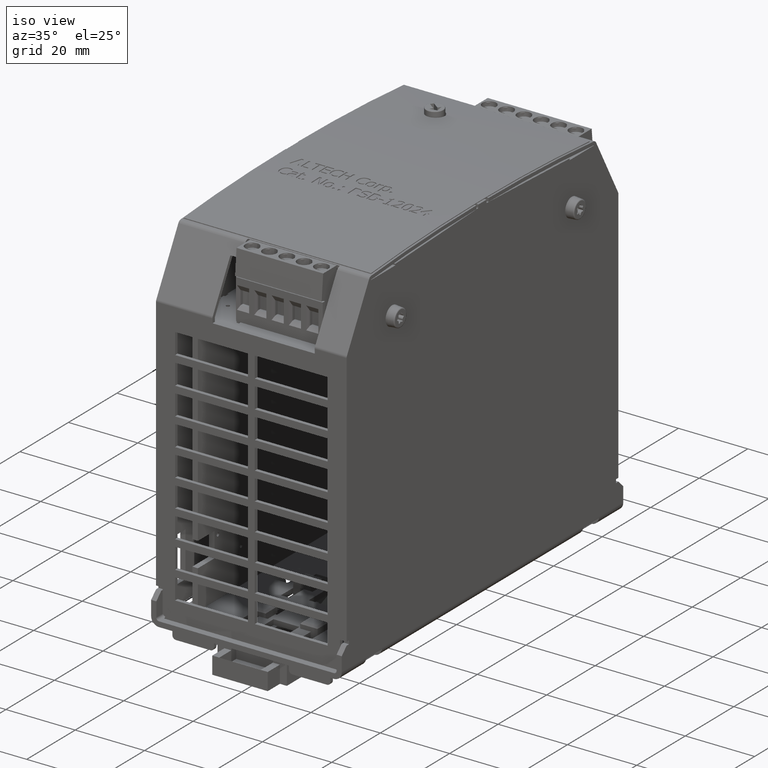
[diagram: clean part render]
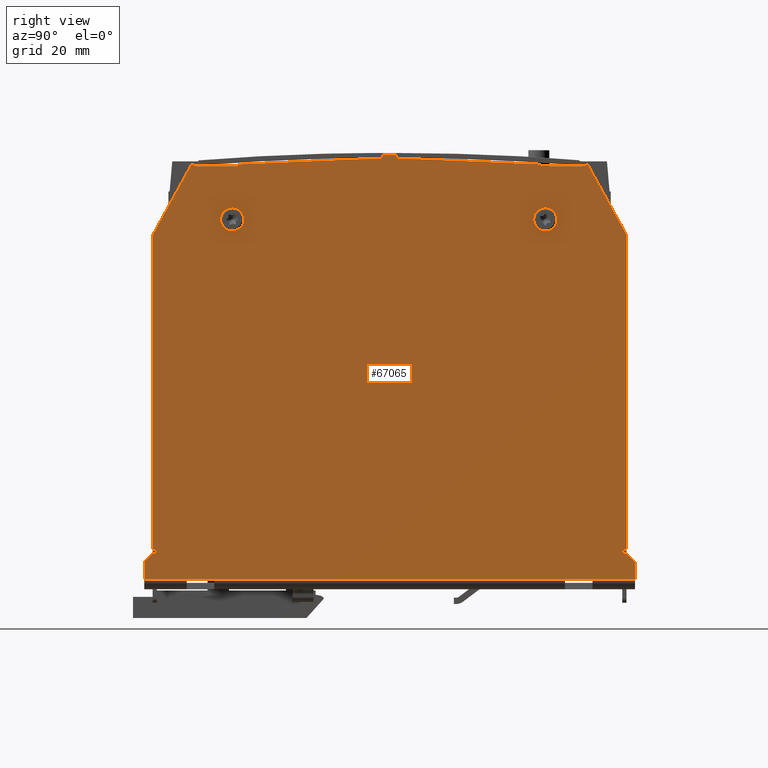
[diagram: tour spotlight — one face highlighted and labeled with its STEP entity id]
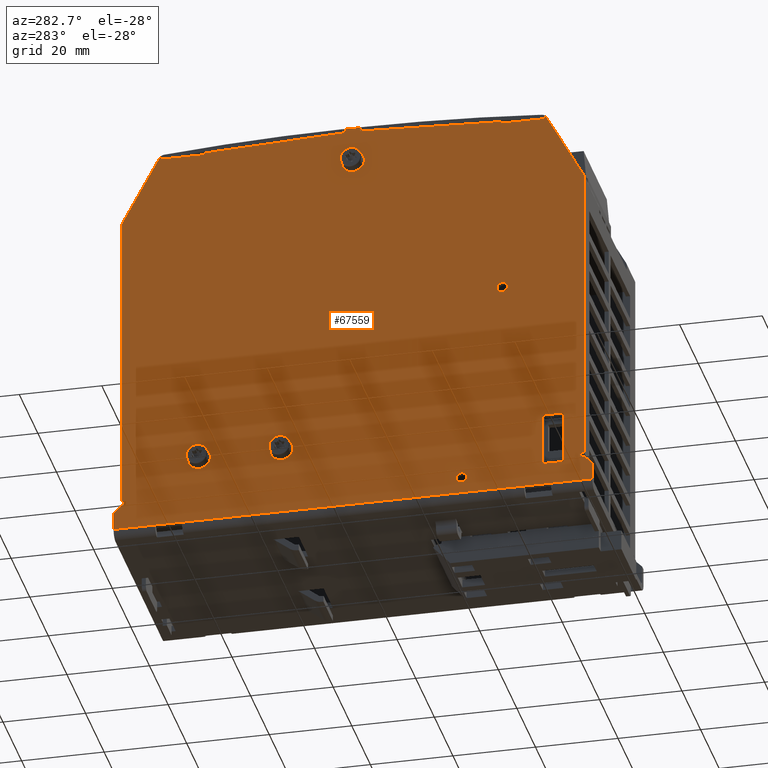
[diagram: tour spotlight — one face highlighted and labeled with its STEP entity id]
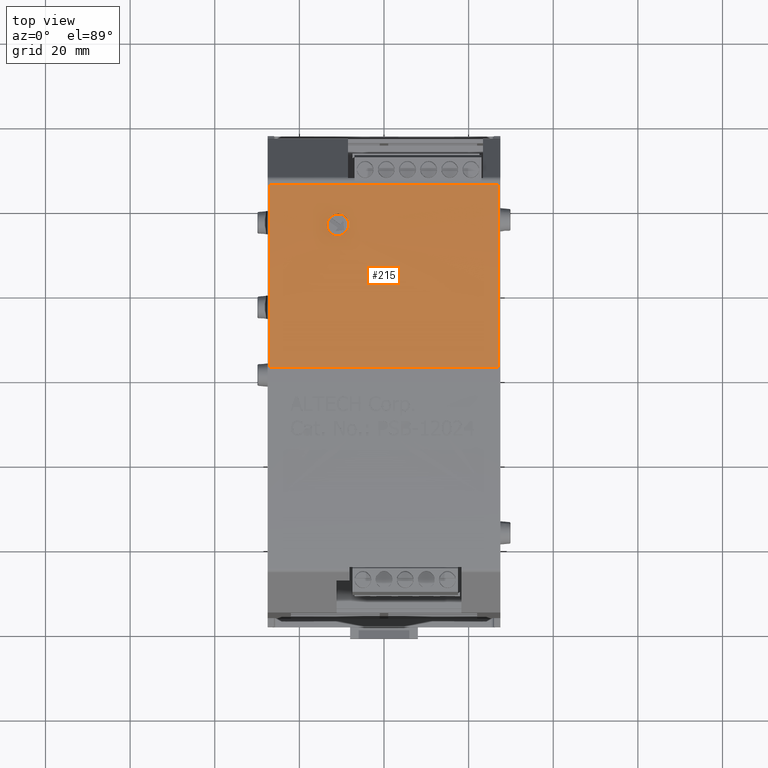
[diagram: tour spotlight — one face highlighted and labeled with its STEP entity id]
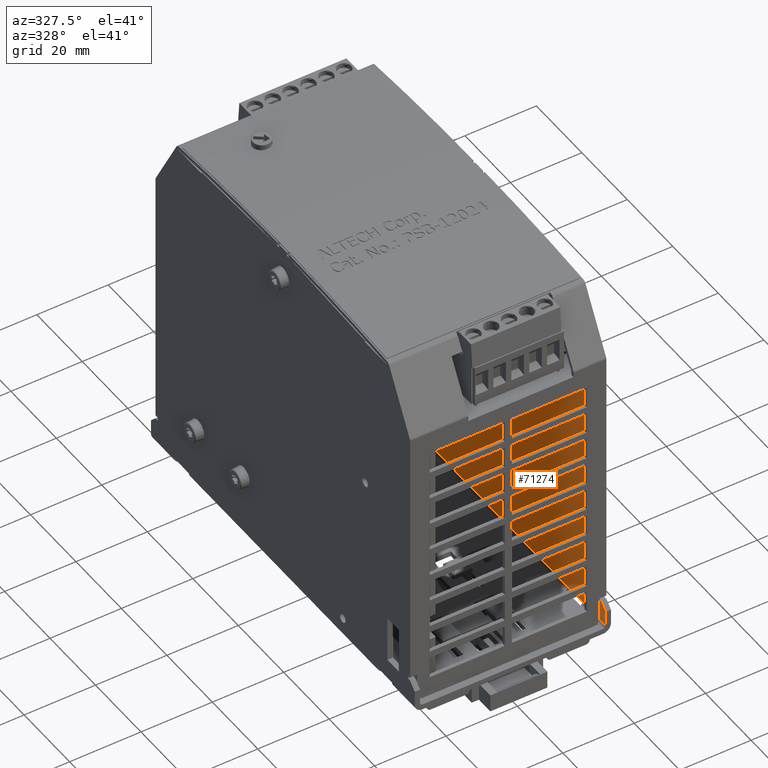
[diagram: tour spotlight — one face highlighted and labeled with its STEP entity id]
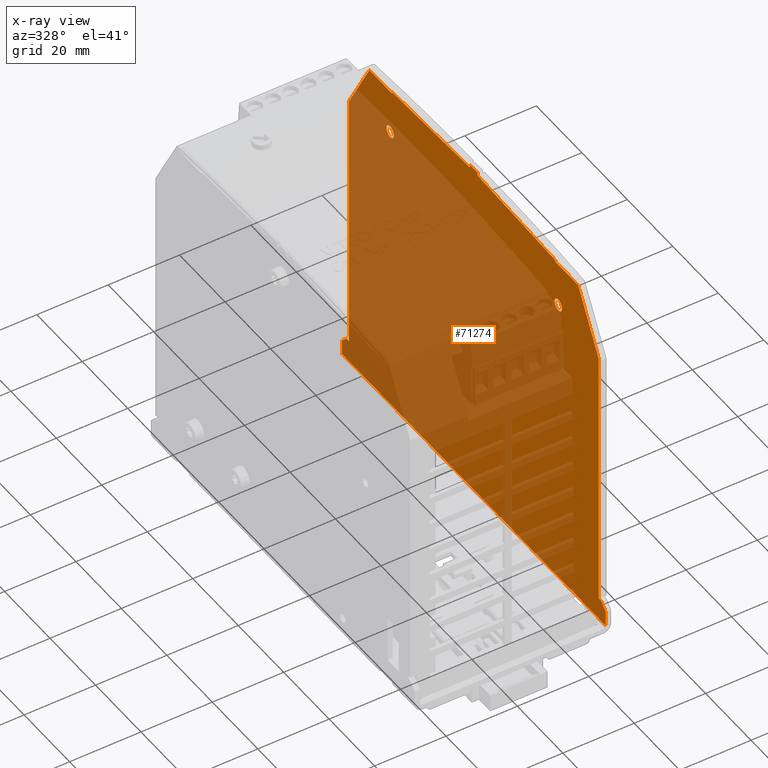
[diagram: x-ray of the same camera — body ghosted, this tour face saturated]
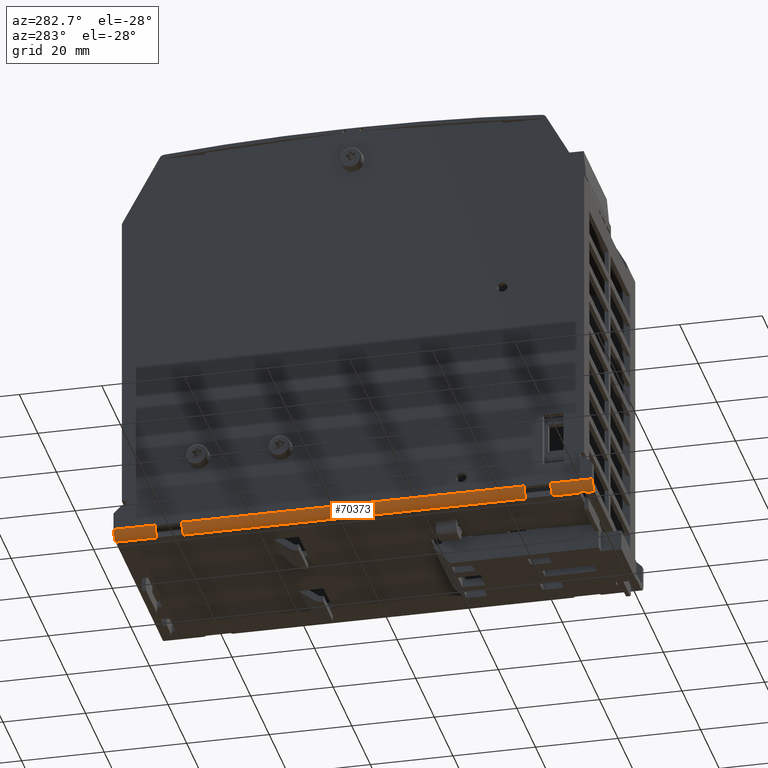
[diagram: tour spotlight — one face highlighted and labeled with its STEP entity id]
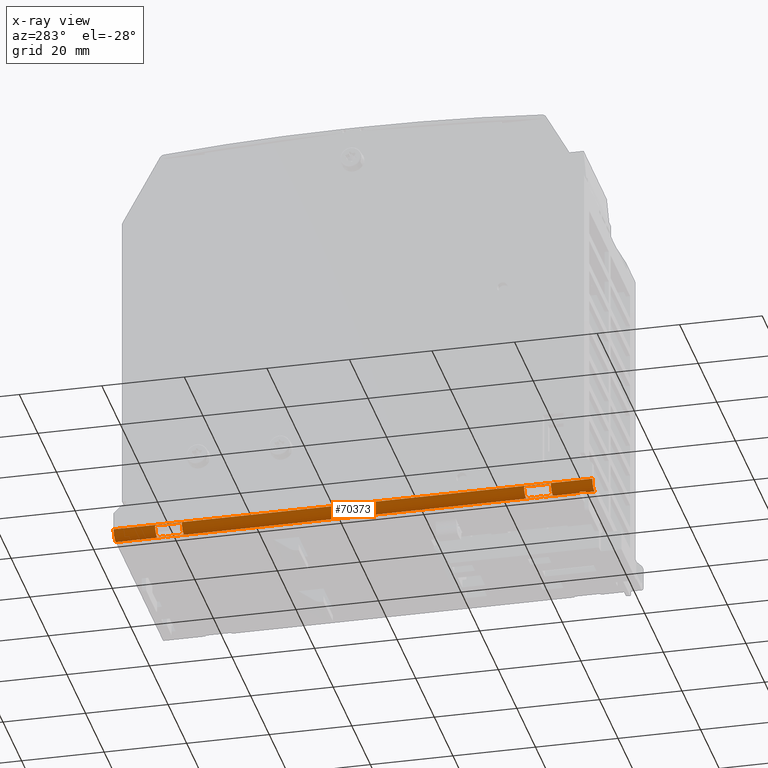
[diagram: x-ray of the same camera — body ghosted, this tour face saturated]
A machine part: a face-by-face anatomy tour. The part has 2157 B-rep faces; the first image is the clean iso view, then the 5 largest visible faces are spotlighted one at a time (largest first), each with its STEP entity span.

Face 1 — right view, entity #67065. In plain terms, the highlighted planar face has unit normal (-1, 0, 0).
Definition (entity closure, byte-faithful):
#16807=CARTESIAN_POINT('',(1.082677165354343,-1.375260035914087,3.502150905018449));
#16808=VERTEX_POINT('',#16807);
#16809=CARTESIAN_POINT('',(1.082677165354326,-1.464566929133859,3.440944881889765));
#16810=DIRECTION('',(-1.0,0.0,0.0));
#16811=DIRECTION('',(0.0,0.824870941011712,0.565321086352218));
#16812=AXIS2_PLACEMENT_3D('',#16809,#16810,#16811);
#16813=CIRCLE('',#16812,0.108267716535435);
#16814=EDGE_CURVE('',#16808,#16808,#16813,.T.);
#19207=CARTESIAN_POINT('',(1.082677165354342,1.557086614173229,3.440944881889766));
#19208=VERTEX_POINT('',#19207);
#19209=CARTESIAN_POINT('',(1.082677165354326,1.448818897637795,3.440944881889766));
#19210=DIRECTION('',(-1.0,0.0,0.0));
#19211=DIRECTION('',(0.0,1.0,0.0));
#19212=AXIS2_PLACEMENT_3D('',#19209,#19210,#19211);
#19213=CIRCLE('',#19212,0.108267716535435);
#19214=EDGE_CURVE('',#19208,#19208,#19213,.T.);
#57264=CARTESIAN_POINT('',(1.082677165354315,1.841561223489167,3.956021143397083));
#57265=VERTEX_POINT('',#57264);
#57485=CARTESIAN_POINT('',(1.082677165354314,2.204724409449062,3.286387887926742));
#57486=VERTEX_POINT('',#57485);
#57493=CARTESIAN_POINT('',(1.082677165354315,2.204724409449633,0.374015748032657));
#57494=VERTEX_POINT('',#57493);
#57495=CARTESIAN_POINT('',(1.082677165354314,2.204724409449062,3.286387887926742));
#57496=DIRECTION('',(2.287255E-016,1.963990E-013,-1.0));
#57497=VECTOR('',#57496,2.912372139894085);
#57498=LINE('',#57495,#57497);
#57499=EDGE_CURVE('',#57486,#57494,#57498,.T.);
#59376=CARTESIAN_POINT('',(1.082677165354312,-2.204724409448824,0.374015748031457));
#59377=VERTEX_POINT('',#59376);
#59384=CARTESIAN_POINT('',(1.082677165354312,-2.204724409448827,3.286387887925589));
#59385=VERTEX_POINT('',#59384);
#59386=CARTESIAN_POINT('',(1.082677165354312,-2.204724409448824,0.374015748031457));
#59387=DIRECTION('',(0.0,0.0,1.0));
#59388=VECTOR('',#59387,2.912372139894131);
#59389=LINE('',#59386,#59388);
#59390=EDGE_CURVE('',#59377,#59385,#59389,.T.);
#61126=CARTESIAN_POINT('',(1.082677165354315,2.199339393082315,3.307302484245017));
#61127=VERTEX_POINT('',#61126);
#61128=CARTESIAN_POINT('',(1.082677165354315,1.841561223489167,3.956021143397083));
#61129=DIRECTION('',(0.0,0.482937042258638,-0.875655076622341));
#61130=VECTOR('',#61129,0.74083811819417);
#61131=LINE('',#61128,#61130);
#61132=EDGE_CURVE('',#57265,#61127,#61131,.T.);
#61214=CARTESIAN_POINT('',(1.082677165354314,2.161417322834892,3.28638788792673));
#61215=DIRECTION('',(-1.0,0.0,0.0));
#61216=DIRECTION('',(0.0,0.875655076622366,0.482937042258594));
#61217=AXIS2_PLACEMENT_3D('',#61214,#61215,#61216);
#61218=CIRCLE('',#61217,0.04330708661417);
#61219=EDGE_CURVE('',#61127,#57486,#61218,.T.);
#62233=CARTESIAN_POINT('',(1.082677165354324,-1.807086614173227,3.93700787401575));
#62234=VERTEX_POINT('',#62233);
#64960=CARTESIAN_POINT('',(1.082677165354314,-2.16535433070867,0.374015748031458));
#64961=VERTEX_POINT('',#64960);
#64962=CARTESIAN_POINT('',(1.082677165354312,-2.204724409448824,0.374015748031457));
#64963=DIRECTION('',(0.0,1.0,0.0));
#64964=VECTOR('',#64963,0.039370078740154);
#64965=LINE('',#64962,#64964);
#64966=EDGE_CURVE('',#59377,#64961,#64965,.T.);
#65359=CARTESIAN_POINT('',(1.082677165354315,2.165354330709476,0.374015748032648));
#65360=VERTEX_POINT('',#65359);
#65361=CARTESIAN_POINT('',(1.082677165354315,2.165354330709476,0.374015748032648));
#65362=DIRECTION('',(0.0,1.0,2.396972E-013));
#65363=VECTOR('',#65362,0.039370078740158);
#65364=LINE('',#65361,#65363);
#65365=EDGE_CURVE('',#65360,#57494,#65364,.T.);
#65732=CARTESIAN_POINT('',(1.082677165354324,1.807086614173229,3.93700787401575));
#65733=VERTEX_POINT('',#65732);
#65734=CARTESIAN_POINT('',(1.082677165354315,1.841561223489167,3.956021143397083));
#65735=DIRECTION('',(0.0,-0.875655076622339,-0.482937042258643));
#65736=VECTOR('',#65735,0.039370078740149);
#65737=LINE('',#65734,#65736);
#65738=EDGE_CURVE('',#57265,#65733,#65737,.T.);
#65778=CARTESIAN_POINT('',(1.082677165354314,-1.841561223489085,3.95602114339602));
#65779=VERTEX_POINT('',#65778);
#65838=CARTESIAN_POINT('',(1.082677165354314,-1.841561223489085,3.95602114339602));
#65839=DIRECTION('',(1.691980E-014,0.875655076622439,-0.482937042258461));
#65840=VECTOR('',#65839,0.039370078740152);
#65841=LINE('',#65838,#65840);
#65842=EDGE_CURVE('',#65779,#62234,#65841,.T.);
#65855=CARTESIAN_POINT('',(1.082677165354314,-2.199339393082083,3.307302484243867));
#65856=VERTEX_POINT('',#65855);
#65857=CARTESIAN_POINT('',(1.082677165354312,-2.161417322834652,3.286387887925585));
#65858=DIRECTION('',(-1.0,0.0,0.0));
#65859=DIRECTION('',(0.0,-1.0,0.0));
#65860=AXIS2_PLACEMENT_3D('',#65857,#65858,#65859);
#65861=CIRCLE('',#65860,0.043307086614175);
#65862=EDGE_CURVE('',#59385,#65856,#65861,.T.);
#65880=CARTESIAN_POINT('',(1.082677165354314,-2.199339393082083,3.307302484243867));
#65881=DIRECTION('',(0.0,0.482937042258434,0.875655076622454));
#65882=VECTOR('',#65881,0.740838118194173);
#65883=LINE('',#65880,#65882);
#65884=EDGE_CURVE('',#65856,#65779,#65883,.T.);
#65976=CARTESIAN_POINT('',(1.08267716535433,-2.165354330708662,0.334645669291341));
#65977=VERTEX_POINT('',#65976);
#65984=CARTESIAN_POINT('',(1.082677165354325,-2.165354330708661,0.374015748031458));
#65985=DIRECTION('',(0.0,0.0,-1.0));
#65986=VECTOR('',#65985,0.039370078740117);
#65987=LINE('',#65984,#65986);
#65988=EDGE_CURVE('',#64961,#65977,#65987,.T.);
#66873=CARTESIAN_POINT('',(1.082677165354326,-4.823126E-017,-0.992709559873258));
#66874=DIRECTION('',(-1.0,0.0,0.0));
#66875=DIRECTION('',(0.0,0.0,1.0));
#66876=AXIS2_PLACEMENT_3D('',#66873,#66874,#66875);
#66877=PLANE('',#66876);
#66878=ORIENTED_EDGE('',*,*,#65988,.T.);
#66879=CARTESIAN_POINT('',(1.08267716535433,-2.20472440944882,0.334645669291341));
#66880=VERTEX_POINT('',#66879);
#66881=CARTESIAN_POINT('',(1.08267716535433,-2.165354330708662,0.334645669291341));
#66882=DIRECTION('',(0.0,-1.0,0.0));
#66883=VECTOR('',#66882,0.039370078740158);
#66884=LINE('',#66881,#66883);
#66885=EDGE_CURVE('',#65977,#66880,#66884,.T.);
#66886=ORIENTED_EDGE('',*,*,#66885,.T.);
#66887=CARTESIAN_POINT('',(1.08267716535433,-2.283464566929135,0.255905511811026));
#66888=VERTEX_POINT('',#66887);
#66889=CARTESIAN_POINT('',(1.08267716535433,-2.20472440944882,0.334645669291341));
#66890=DIRECTION('',(0.0,-0.707106781186551,-0.707106781186544));
#66891=VECTOR('',#66890,0.111355398612055);
#66892=LINE('',#66889,#66891);
#66893=EDGE_CURVE('',#66880,#66888,#66892,.T.);
#66894=ORIENTED_EDGE('',*,*,#66893,.T.);
#66895=CARTESIAN_POINT('',(1.08267716535433,-2.283464566929135,0.088582677165356));
#66896=VERTEX_POINT('',#66895);
#66897=CARTESIAN_POINT('',(1.08267716535433,-2.283464566929135,0.088582677165356));
#66898=DIRECTION('',(0.0,0.0,1.0));
#66899=VECTOR('',#66898,0.16732283464567);
#66900=LINE('',#66897,#66899);
#66901=EDGE_CURVE('',#66896,#66888,#66900,.T.);
#66902=ORIENTED_EDGE('',*,*,#66901,.F.);
#66903=CARTESIAN_POINT('',(1.08267716535433,2.283464566929135,0.088582677165356));
#66904=VERTEX_POINT('',#66903);
#66905=CARTESIAN_POINT('',(1.08267716535433,-2.283464566929135,0.088582677165356));
#66906=DIRECTION('',(0.0,1.0,0.0));
#66907=VECTOR('',#66906,4.56692913385827);
#66908=LINE('',#66905,#66907);
#66909=EDGE_CURVE('',#66896,#66904,#66908,.T.);
#66910=ORIENTED_EDGE('',*,*,#66909,.T.);
#66911=CARTESIAN_POINT('',(1.08267716535433,2.283464566929135,0.255905511811026));
#66912=VERTEX_POINT('',#66911);
#66913=CARTESIAN_POINT('',(1.08267716535433,2.283464566929135,0.255905511811026));
#66914=DIRECTION('',(0.0,0.0,-1.0));
#66915=VECTOR('',#66914,0.16732283464567);
#66916=LINE('',#66913,#66915);
#66917=EDGE_CURVE('',#66912,#66904,#66916,.T.);
#66918=ORIENTED_EDGE('',*,*,#66917,.F.);
#66919=CARTESIAN_POINT('',(1.08267716535433,2.20472440944882,0.334645669291341));
#66920=VERTEX_POINT('',#66919);
#66921=CARTESIAN_POINT('',(1.08267716535433,2.283464566929135,0.255905511811026));
#66922=DIRECTION('',(0.0,-0.70710678118655,0.707106781186544));
#66923=VECTOR('',#66922,0.111355398612055);
#66924=LINE('',#66921,#66923);
#66925=EDGE_CURVE('',#66912,#66920,#66924,.T.);
#66926=ORIENTED_EDGE('',*,*,#66925,.T.);
#66927=CARTESIAN_POINT('',(1.08267716535433,2.165354330708663,0.334645669291341));
#66928=VERTEX_POINT('',#66927);
#66929=CARTESIAN_POINT('',(1.08267716535433,2.20472440944882,0.334645669291341));
#66930=DIRECTION('',(0.0,-1.0,0.0));
#66931=VECTOR('',#66930,0.039370078740157);
#66932=LINE('',#66929,#66931);
#66933=EDGE_CURVE('',#66920,#66928,#66932,.T.);
#66934=ORIENTED_EDGE('',*,*,#66933,.T.);
#66935=CARTESIAN_POINT('',(1.08267716535433,2.165354330708663,0.334645669291341));
#66936=DIRECTION('',(0.0,0.0,1.0));
#66937=VECTOR('',#66936,0.039370078741307);
#66938=LINE('',#66935,#66937);
#66939=EDGE_CURVE('',#66928,#65360,#66938,.T.);
#66940=ORIENTED_EDGE('',*,*,#66939,.T.);
#66941=ORIENTED_EDGE('',*,*,#65365,.T.);
#66942=ORIENTED_EDGE('',*,*,#57499,.F.);
#66943=CARTESIAN_POINT('',(1.082677165354312,2.165354330708911,3.286387887926732));
#66944=VERTEX_POINT('',#66943);
#66945=CARTESIAN_POINT('',(1.082677165354314,2.204724409449062,3.286387887926742));
#66946=DIRECTION('',(-6.203926E-014,-1.0,-2.707168E-013));
#66947=VECTOR('',#66946,0.039370078740151);
#66948=LINE('',#66945,#66947);
#66949=EDGE_CURVE('',#57486,#66944,#66948,.T.);
#66950=ORIENTED_EDGE('',*,*,#66949,.T.);
#66951=ORIENTED_EDGE('',*,*,#66949,.F.);
#66952=ORIENTED_EDGE('',*,*,#61219,.F.);
#66953=CARTESIAN_POINT('',(1.082677165354314,2.164864783766477,3.28828921486476));
#66954=VERTEX_POINT('',#66953);
#66955=CARTESIAN_POINT('',(1.082677165354315,2.199339393082315,3.307302484245017));
#66956=DIRECTION('',(-1.127987E-014,-0.875655076622362,-0.482937042258601));
#66957=VECTOR('',#66956,0.039370078740154);
#66958=LINE('',#66955,#66957);
#66959=EDGE_CURVE('',#61127,#66954,#66958,.T.);
#66960=ORIENTED_EDGE('',*,*,#66959,.T.);
#66961=ORIENTED_EDGE('',*,*,#66959,.F.);
#66962=ORIENTED_EDGE('',*,*,#61132,.F.);
#66963=ORIENTED_EDGE('',*,*,#65738,.T.);
#66964=CARTESIAN_POINT('',(1.082677165354344,1.413385826771655,3.93700787401575));
#66965=VERTEX_POINT('',#66964);
#66966=CARTESIAN_POINT('',(1.082677165354324,1.807086614173229,3.93700787401575));
#66967=DIRECTION('',(0.0,-1.0,0.0));
#66968=VECTOR('',#66967,0.393700787401575);
#66969=LINE('',#66966,#66968);
#66970=EDGE_CURVE('',#65733,#66965,#66969,.T.);
#66971=ORIENTED_EDGE('',*,*,#66970,.T.);
#66972=CARTESIAN_POINT('',(1.082677165354345,1.413385826771655,3.953931663519439));
#66973=VERTEX_POINT('',#66972);
#66974=CARTESIAN_POINT('',(1.082677165354344,1.413385826771655,3.93700787401575));
#66975=DIRECTION('',(0.0,0.0,1.0));
#66976=VECTOR('',#66975,0.016923789503688);
#66977=LINE('',#66974,#66976);
#66978=EDGE_CURVE('',#66965,#66973,#66977,.T.);
#66979=ORIENTED_EDGE('',*,*,#66978,.T.);
#66980=CARTESIAN_POINT('',(1.082677165354324,0.066929133858268,4.01181102362205));
#66981=VERTEX_POINT('',#66980);
#66982=CARTESIAN_POINT('',(1.082677165354345,1.413385826771655,3.953931663519439));
#66983=DIRECTION('',(-1.532251E-014,-0.999077362081988,0.042946764433388));
#66984=VECTOR('',#66983,1.347700132157426);
#66985=LINE('',#66982,#66984);
#66986=EDGE_CURVE('',#66973,#66981,#66985,.T.);
#66987=ORIENTED_EDGE('',*,*,#66986,.T.);
#66988=CARTESIAN_POINT('',(1.082677165354324,0.066929133858269,4.047244094488192));
#66989=VERTEX_POINT('',#66988);
#66990=CARTESIAN_POINT('',(1.082677165354324,0.066929133858268,4.01181102362205));
#66991=DIRECTION('',(0.0,0.0,1.0));
#66992=VECTOR('',#66991,0.035433070866142);
#66993=LINE('',#66990,#66992);
#66994=EDGE_CURVE('',#66981,#66989,#66993,.T.);
#66995=ORIENTED_EDGE('',*,*,#66994,.T.);
#66996=CARTESIAN_POINT('',(1.082677165354324,-0.066929133858266,4.047244094488193));
#66997=VERTEX_POINT('',#66996);
#66998=CARTESIAN_POINT('',(1.082677165354324,-0.066929133858266,4.047244094488193));
#66999=DIRECTION('',(0.0,1.0,0.0));
#67000=VECTOR('',#66999,0.133858267716535);
#67001=LINE('',#66998,#67000);
#67002=EDGE_CURVE('',#66997,#66989,#67001,.T.);
#67003=ORIENTED_EDGE('',*,*,#67002,.F.);
#67004=CARTESIAN_POINT('',(1.082677165354324,-0.066929133858266,4.011811023622052));
#67005=VERTEX_POINT('',#67004);
#67006=CARTESIAN_POINT('',(1.082677165354324,-0.066929133858266,4.047244094488193));
#67007=DIRECTION('',(0.0,0.0,-1.0));
#67008=VECTOR('',#67007,0.035433070866142);
#67009=LINE('',#67006,#67008);
#67010=EDGE_CURVE('',#66997,#67005,#67009,.T.);
#67011=ORIENTED_EDGE('',*,*,#67010,.T.);
#67012=CARTESIAN_POINT('',(1.082677165354345,-1.413385826771654,3.95393166351944));
#67013=VERTEX_POINT('',#67012);
#67014=CARTESIAN_POINT('',(1.082677165354324,-0.066929133858266,4.011811023622052));
#67015=DIRECTION('',(1.532251E-014,-0.999077362081988,-0.042946764433388));
#67016=VECTOR('',#67015,1.347700132157427);
#67017=LINE('',#67014,#67016);
#67018=EDGE_CURVE('',#67005,#67013,#67017,.T.);
#67019=ORIENTED_EDGE('',*,*,#67018,.T.);
#67020=CARTESIAN_POINT('',(1.082677165354345,-1.413385826771654,3.93700787401575));
#67021=VERTEX_POINT('',#67020);
#67022=CARTESIAN_POINT('',(1.082677165354345,-1.413385826771654,3.95393166351944));
#67023=DIRECTION('',(0.0,0.0,-1.0));
#67024=VECTOR('',#67023,0.01692378950369);
#67025=LINE('',#67022,#67024);
#67026=EDGE_CURVE('',#67013,#67021,#67025,.T.);
#67027=ORIENTED_EDGE('',*,*,#67026,.T.);
#67028=CARTESIAN_POINT('',(1.082677165354345,-1.413385826771654,3.93700787401575));
#67029=DIRECTION('',(0.0,-1.0,0.0));
#67030=VECTOR('',#67029,0.393700787401574);
#67031=LINE('',#67028,#67030);
#67032=EDGE_CURVE('',#67021,#62234,#67031,.T.);
#67033=ORIENTED_EDGE('',*,*,#67032,.T.);
#67034=ORIENTED_EDGE('',*,*,#65842,.F.);
#67035=ORIENTED_EDGE('',*,*,#65884,.F.);
#67036=CARTESIAN_POINT('',(1.082677165354314,-2.164864783766243,3.288289214863614));
#67037=VERTEX_POINT('',#67036);
#67038=CARTESIAN_POINT('',(1.082677165354314,-2.199339393082083,3.307302484243867));
#67039=DIRECTION('',(0.0,0.875655076622425,-0.482937042258486));
#67040=VECTOR('',#67039,0.039370078740153);
#67041=LINE('',#67038,#67040);
#67042=EDGE_CURVE('',#65856,#67037,#67041,.T.);
#67043=ORIENTED_EDGE('',*,*,#67042,.T.);
#67044=ORIENTED_EDGE('',*,*,#67042,.F.);
#67045=ORIENTED_EDGE('',*,*,#65862,.F.);
#67046=CARTESIAN_POINT('',(1.082677165354314,-2.165354330708674,3.286387887925589));
#67047=VERTEX_POINT('',#67046);
#67048=CARTESIAN_POINT('',(1.082677165354312,-2.204724409448827,3.286387887925589));
#67049=DIRECTION('',(0.0,1.0,0.0));
#67050=VECTOR('',#67049,0.039370078740153);
#67051=LINE('',#67048,#67050);
#67052=EDGE_CURVE('',#59385,#67047,#67051,.T.);
#67053=ORIENTED_EDGE('',*,*,#67052,.T.);
#67054=ORIENTED_EDGE('',*,*,#67052,.F.);
#67055=ORIENTED_EDGE('',*,*,#59390,.F.);
#67056=ORIENTED_EDGE('',*,*,#64966,.T.);
#67057=EDGE_LOOP('',(#66878,#66886,#66894,#66902,#66910,#66918,#66926,#66934,#66940,#66941,#66942,#66950,#66951,#66952,#66960,#66961,#66962,#66963,#66971,#66979,#66987,#66995,#67003,#67011,#67019,#67027,#67033,#67034,#67035,#67043,#67044,#67045,#67053,#67054,#67055,#67056));
#67058=FACE_OUTER_BOUND('',#67057,.T.);
#67059=ORIENTED_EDGE('',*,*,#16814,.T.);
#67060=EDGE_LOOP('',(#67059));
#67061=FACE_BOUND('',#67060,.T.);
#67062=ORIENTED_EDGE('',*,*,#19214,.T.);
#67063=EDGE_LOOP('',(#67062));
#67064=FACE_BOUND('',#67063,.T.);
#67065=ADVANCED_FACE('',(#67058,#67061,#67064),#66877,.F.);

Face 2 — auxiliary view, entity #67559. In plain terms, the highlighted planar face has unit normal (1, 0, 0).
Definition (entity closure, byte-faithful):
#15997=CARTESIAN_POINT('',(-1.082677165354326,1.576771653543307,0.744094488188979));
#15998=VERTEX_POINT('',#15997);
#15999=CARTESIAN_POINT('',(-1.082677165354342,1.468503937007874,0.744094488188979));
#16000=DIRECTION('',(1.0,0.0,0.0));
#16001=DIRECTION('',(0.0,1.0,0.0));
#16002=AXIS2_PLACEMENT_3D('',#15999,#16000,#16001);
#16003=CIRCLE('',#16002,0.108267716535432);
#16004=EDGE_CURVE('',#15998,#15998,#16003,.T.);
#17653=CARTESIAN_POINT('',(-1.082677165354298,0.106613275053404,3.681932481098068));
#17654=VERTEX_POINT('',#17653);
#17655=CARTESIAN_POINT('',(-1.082677165354342,-1.059893E-016,3.700787401574807));
#17656=DIRECTION('',(1.0,0.0,0.0));
#17657=DIRECTION('',(0.0,0.984718976856893,-0.174150901857881));
#17658=AXIS2_PLACEMENT_3D('',#17655,#17656,#17657);
#17659=CIRCLE('',#17658,0.108267716535429);
#17660=EDGE_CURVE('',#17654,#17654,#17659,.T.);
#18397=CARTESIAN_POINT('',(-1.082677165354326,0.789370078740158,0.744094488188979));
#18398=VERTEX_POINT('',#18397);
#18399=CARTESIAN_POINT('',(-1.082677165354342,0.681102362204724,0.744094488188979));
#18400=DIRECTION('',(1.0,0.0,0.0));
#18401=DIRECTION('',(0.0,1.0,0.0));
#18402=AXIS2_PLACEMENT_3D('',#18399,#18400,#18401);
#18403=CIRCLE('',#18402,0.108267716535432);
#18404=EDGE_CURVE('',#18398,#18398,#18403,.T.);
#32092=CARTESIAN_POINT('',(-1.082677165354347,1.841561223489165,3.956021143397082));
#32093=VERTEX_POINT('',#32092);
#32156=CARTESIAN_POINT('',(-1.082677165354294,1.807086614173229,3.93700787401575));
#32157=VERTEX_POINT('',#32156);
#57437=CARTESIAN_POINT('',(-1.082677165354348,2.204724409449631,0.374015748032789));
#57438=VERTEX_POINT('',#57437);
#57445=CARTESIAN_POINT('',(-1.082677165354348,2.204724409449058,3.286387887926737));
#57446=VERTEX_POINT('',#57445);
#57447=CARTESIAN_POINT('',(-1.082677165354348,2.204724409449058,3.286387887926737));
#57448=DIRECTION('',(0.0,1.967039E-013,-1.0));
#57449=VECTOR('',#57448,2.912372139893948);
#57450=LINE('',#57447,#57449);
#57451=EDGE_CURVE('',#57446,#57438,#57450,.T.);
#59424=CARTESIAN_POINT('',(-1.08267716535435,-2.204724409448827,3.286387887925585));
#59425=VERTEX_POINT('',#59424);
#59432=CARTESIAN_POINT('',(-1.082677165354348,-2.204724409448821,0.374015748031502));
#59433=VERTEX_POINT('',#59432);
#59434=CARTESIAN_POINT('',(-1.082677165354348,-2.204724409448821,0.374015748031502));
#59435=DIRECTION('',(0.0,0.0,1.0));
#59436=VECTOR('',#59435,2.912372139894083);
#59437=LINE('',#59434,#59436);
#59438=EDGE_CURVE('',#59433,#59425,#59437,.T.);
#61149=CARTESIAN_POINT('',(-1.082677165354347,2.199339393082314,3.307302484245014));
#61150=VERTEX_POINT('',#61149);
#61157=CARTESIAN_POINT('',(-1.082677165354347,1.841561223489165,3.956021143397082));
#61158=DIRECTION('',(0.0,0.482937042258639,-0.875655076622341));
#61159=VECTOR('',#61158,0.740838118194171);
#61160=LINE('',#61157,#61159);
#61161=EDGE_CURVE('',#32093,#61150,#61160,.T.);
#61232=CARTESIAN_POINT('',(-1.082677165354347,2.161417322834892,3.28638788792673));
#61233=DIRECTION('',(-1.0,0.0,0.0));
#61234=DIRECTION('',(0.0,0.875655076622401,0.48293704225853));
#61235=AXIS2_PLACEMENT_3D('',#61232,#61233,#61234);
#61236=CIRCLE('',#61235,0.043307086614168);
#61237=EDGE_CURVE('',#61150,#57446,#61236,.T.);
#62058=CARTESIAN_POINT('',(-1.082677165354348,-2.199339393082081,3.307302484243865));
#62059=VERTEX_POINT('',#62058);
#62066=CARTESIAN_POINT('',(-1.082677165354348,-2.161417322834652,3.286387887925585));
#62067=DIRECTION('',(-1.0,0.0,0.0));
#62068=DIRECTION('',(0.0,-1.0,0.0));
#62069=AXIS2_PLACEMENT_3D('',#62066,#62067,#62068);
#62070=CIRCLE('',#62069,0.043307086614173);
#62071=EDGE_CURVE('',#59425,#62059,#62070,.T.);
#62085=CARTESIAN_POINT('',(-1.082677165354348,-1.841561223489084,3.956021143396015));
#62086=VERTEX_POINT('',#62085);
#62093=CARTESIAN_POINT('',(-1.082677165354348,-2.199339393082081,3.307302484243865));
#62094=DIRECTION('',(0.0,0.482937042258435,0.875655076622453));
#62095=VECTOR('',#62094,0.740838118194171);
#62096=LINE('',#62093,#62095);
#62097=EDGE_CURVE('',#62059,#62086,#62096,.T.);
#62207=CARTESIAN_POINT('',(-1.082677165354294,-1.807086614173227,3.937007874015752));
#62208=VERTEX_POINT('',#62207);
#64990=CARTESIAN_POINT('',(-1.08267716535435,-2.165354330708663,0.374015748031502));
#64991=VERTEX_POINT('',#64990);
#64992=CARTESIAN_POINT('',(-1.08267716535435,-2.165354330708663,0.374015748031502));
#64993=DIRECTION('',(0.0,-1.0,0.0));
#64994=VECTOR('',#64993,0.039370078740158);
#64995=LINE('',#64992,#64994);
#64996=EDGE_CURVE('',#64991,#59433,#64995,.T.);
#65329=CARTESIAN_POINT('',(-1.082677165354348,2.165354330709468,0.374015748032779));
#65330=VERTEX_POINT('',#65329);
#65331=CARTESIAN_POINT('',(-1.082677165354348,2.204724409449631,0.374015748032789));
#65332=DIRECTION('',(-1.691980E-014,-1.0,-2.481571E-013));
#65333=VECTOR('',#65332,0.039370078740163);
#65334=LINE('',#65331,#65333);
#65335=EDGE_CURVE('',#57438,#65330,#65334,.T.);
#65698=CARTESIAN_POINT('',(-1.082677165354349,1.807086614173325,3.93700787401682));
#65699=DIRECTION('',(3.383960E-014,0.875655076622338,0.482937042258645));
#65700=VECTOR('',#65699,0.039370078740157);
#65701=LINE('',#65698,#65700);
#65702=EDGE_CURVE('',#32157,#32093,#65701,.T.);
#65809=CARTESIAN_POINT('',(-1.082677165354349,-1.807086614173239,3.937007874015763));
#65810=DIRECTION('',(1.691980E-014,-0.875655076622461,0.482937042258421));
#65811=VECTOR('',#65810,0.039370078740157);
#65812=LINE('',#65809,#65811);
#65813=EDGE_CURVE('',#62208,#62086,#65812,.T.);
#65945=CARTESIAN_POINT('',(-1.082677165354329,2.165354330708662,0.334645669291341));
#65946=VERTEX_POINT('',#65945);
#65953=CARTESIAN_POINT('',(-1.0826771653543,2.165354330708663,0.374015748032779));
#65954=DIRECTION('',(0.0,0.0,-1.0));
#65955=VECTOR('',#65954,0.039370078741438);
#65956=LINE('',#65953,#65955);
#65957=EDGE_CURVE('',#65330,#65946,#65956,.T.);
#66008=CARTESIAN_POINT('',(-1.082677165354329,-2.165354330708663,0.334645669291342));
#66009=VERTEX_POINT('',#66008);
#66010=CARTESIAN_POINT('',(-1.082677165354329,-2.165354330708663,0.334645669291342));
#66011=DIRECTION('',(0.0,0.0,1.0));
#66012=VECTOR('',#66011,0.03937007874016);
#66013=LINE('',#66010,#66012);
#66014=EDGE_CURVE('',#66009,#64991,#66013,.T.);
#67072=CARTESIAN_POINT('',(-1.082677165354329,-1.811023622047245,0.303149606299215));
#67073=VERTEX_POINT('',#67072);
#67080=CARTESIAN_POINT('',(-1.082677165354329,-2.007874015748031,0.303149606299215));
#67081=VERTEX_POINT('',#67080);
#67082=CARTESIAN_POINT('',(-1.082677165354329,-2.007874015748031,0.303149606299215));
#67083=DIRECTION('',(0.0,1.0,0.0));
#67084=VECTOR('',#67083,0.196850393700786);
#67085=LINE('',#67082,#67084);
#67086=EDGE_CURVE('',#67081,#67073,#67085,.T.);
#67104=CARTESIAN_POINT('',(-1.082677165354325,-2.007874015748031,0.814960629921263));
#67105=VERTEX_POINT('',#67104);
#67106=CARTESIAN_POINT('',(-1.082677165354325,-2.007874015748031,0.814960629921263));
#67107=DIRECTION('',(0.0,0.0,-1.0));
#67108=VECTOR('',#67107,0.511811023622047);
#67109=LINE('',#67106,#67108);
#67110=EDGE_CURVE('',#67105,#67081,#67109,.T.);
#67128=CARTESIAN_POINT('',(-1.082677165354325,-1.811023622047243,0.814960629921263));
#67129=VERTEX_POINT('',#67128);
#67130=CARTESIAN_POINT('',(-1.082677165354325,-1.811023622047243,0.814960629921263));
#67131=DIRECTION('',(0.0,-1.0,0.0));
#67132=VECTOR('',#67131,0.196850393700788);
#67133=LINE('',#67130,#67132);
#67134=EDGE_CURVE('',#67129,#67105,#67133,.T.);
#67152=CARTESIAN_POINT('',(-1.082677165354329,-1.811023622047245,0.303149606299215));
#67153=DIRECTION('',(0.0,0.0,1.0));
#67154=VECTOR('',#67153,0.511811023622047);
#67155=LINE('',#67152,#67154);
#67156=EDGE_CURVE('',#67073,#67129,#67155,.T.);
#67167=CARTESIAN_POINT('',(-1.082677165354297,1.413385826771655,3.953931663519439));
#67168=VERTEX_POINT('',#67167);
#67176=CARTESIAN_POINT('',(-1.082677165354297,1.413385826771655,3.93700787401575));
#67177=VERTEX_POINT('',#67176);
#67184=CARTESIAN_POINT('',(-1.082677165354297,1.413385826771655,3.953931663519439));
#67185=DIRECTION('',(0.0,0.0,-1.0));
#67186=VECTOR('',#67185,0.016923789503688);
#67187=LINE('',#67184,#67186);
#67188=EDGE_CURVE('',#67168,#67177,#67187,.T.);
#67198=CARTESIAN_POINT('',(-1.082677165354297,1.413385826771655,3.93700787401575));
#67199=DIRECTION('',(0.0,1.0,0.0));
#67200=VECTOR('',#67199,0.393700787401575);
#67201=LINE('',#67198,#67200);
#67202=EDGE_CURVE('',#67177,#32157,#67201,.T.);
#67311=CARTESIAN_POINT('',(-1.082677165354297,-1.413385826771654,3.953931663519439));
#67312=VERTEX_POINT('',#67311);
#67319=CARTESIAN_POINT('',(-1.082677165354297,-1.413385826771654,3.937007874015752));
#67320=VERTEX_POINT('',#67319);
#67321=CARTESIAN_POINT('',(-1.082677165354297,-1.413385826771654,3.937007874015752));
#67322=DIRECTION('',(0.0,0.0,1.0));
#67323=VECTOR('',#67322,0.016923789503687);
#67324=LINE('',#67321,#67323);
#67325=EDGE_CURVE('',#67320,#67312,#67324,.T.);
#67342=CARTESIAN_POINT('',(-1.082677165354294,-1.807086614173227,3.937007874015752));
#67343=DIRECTION('',(0.0,1.0,0.0));
#67344=VECTOR('',#67343,0.393700787401574);
#67345=LINE('',#67342,#67344);
#67346=EDGE_CURVE('',#62208,#67320,#67345,.T.);
#67360=CARTESIAN_POINT('',(-1.082677165354293,0.066929133858268,4.01181102362205));
#67361=VERTEX_POINT('',#67360);
#67362=CARTESIAN_POINT('',(-1.082677165354293,0.066929133858268,4.01181102362205));
#67363=DIRECTION('',(-2.800889E-015,0.999077362081988,-0.042946764433388));
#67364=VECTOR('',#67363,1.347700132157426);
#67365=LINE('',#67362,#67364);
#67366=EDGE_CURVE('',#67361,#67168,#67365,.T.);
#67378=CARTESIAN_POINT('',(-1.082677165354342,-1.311287E-016,-0.992709559873257));
#67379=DIRECTION('',(1.0,0.0,0.0));
#67380=DIRECTION('',(0.0,0.0,-1.0));
#67381=AXIS2_PLACEMENT_3D('',#67378,#67379,#67380);
#67382=PLANE('',#67381);
#67383=ORIENTED_EDGE('',*,*,#65957,.T.);
#67384=CARTESIAN_POINT('',(-1.082677165354329,2.20472440944882,0.334645669291341));
#67385=VERTEX_POINT('',#67384);
#67386=CARTESIAN_POINT('',(-1.082677165354329,2.165354330708662,0.334645669291341));
#67387=DIRECTION('',(0.0,1.0,0.0));
#67388=VECTOR('',#67387,0.039370078740158);
#67389=LINE('',#67386,#67388);
#67390=EDGE_CURVE('',#65946,#67385,#67389,.T.);
#67391=ORIENTED_EDGE('',*,*,#67390,.T.);
#67392=CARTESIAN_POINT('',(-1.08267716535433,2.283464566929135,0.255905511811027));
#67393=VERTEX_POINT('',#67392);
#67394=CARTESIAN_POINT('',(-1.082677165354329,2.20472440944882,0.334645669291341));
#67395=DIRECTION('',(-9.970087E-015,0.707106781186551,-0.707106781186544));
#67396=VECTOR('',#67395,0.111355398612055);
#67397=LINE('',#67394,#67396);
#67398=EDGE_CURVE('',#67385,#67393,#67397,.T.);
#67399=ORIENTED_EDGE('',*,*,#67398,.T.);
#67400=CARTESIAN_POINT('',(-1.082677165354331,2.283464566929135,0.088582677165357));
#67401=VERTEX_POINT('',#67400);
#67402=CARTESIAN_POINT('',(-1.082677165354331,2.283464566929135,0.088582677165357));
#67403=DIRECTION('',(0.0,0.0,1.0));
#67404=VECTOR('',#67403,0.16732283464567);
#67405=LINE('',#67402,#67404);
#67406=EDGE_CURVE('',#67401,#67393,#67405,.T.);
#67407=ORIENTED_EDGE('',*,*,#67406,.F.);
#67408=CARTESIAN_POINT('',(-1.082677165354331,-2.283464566929135,0.088582677165357));
#67409=VERTEX_POINT('',#67408);
#67410=CARTESIAN_POINT('',(-1.082677165354331,2.283464566929135,0.088582677165357));
#67411=DIRECTION('',(0.0,-1.0,0.0));
#67412=VECTOR('',#67411,4.56692913385827);
#67413=LINE('',#67410,#67412);
#67414=EDGE_CURVE('',#67401,#67409,#67413,.T.);
#67415=ORIENTED_EDGE('',*,*,#67414,.T.);
#67416=CARTESIAN_POINT('',(-1.08267716535433,-2.283464566929135,0.255905511811027));
#67417=VERTEX_POINT('',#67416);
#67418=CARTESIAN_POINT('',(-1.08267716535433,-2.283464566929135,0.255905511811027));
#67419=DIRECTION('',(0.0,0.0,-1.0));
#67420=VECTOR('',#67419,0.16732283464567);
#67421=LINE('',#67418,#67420);
#67422=EDGE_CURVE('',#67417,#67409,#67421,.T.);
#67423=ORIENTED_EDGE('',*,*,#67422,.F.);
#67424=CARTESIAN_POINT('',(-1.082677165354329,-2.20472440944882,0.334645669291342));
#67425=VERTEX_POINT('',#67424);
#67426=CARTESIAN_POINT('',(-1.08267716535433,-2.283464566929135,0.255905511811027));
#67427=DIRECTION('',(9.970087E-015,0.70710678118655,0.707106781186545));
#67428=VECTOR('',#67427,0.111355398612055);
#67429=LINE('',#67426,#67428);
#67430=EDGE_CURVE('',#67417,#67425,#67429,.T.);
#67431=ORIENTED_EDGE('',*,*,#67430,.T.);
#67432=CARTESIAN_POINT('',(-1.082677165354329,-2.20472440944882,0.334645669291342));
#67433=DIRECTION('',(0.0,1.0,0.0));
#67434=VECTOR('',#67433,0.039370078740157);
#67435=LINE('',#67432,#67434);
#67436=EDGE_CURVE('',#67425,#66009,#67435,.T.);
#67437=ORIENTED_EDGE('',*,*,#67436,.T.);
#67438=ORIENTED_EDGE('',*,*,#66014,.T.);
#67439=ORIENTED_EDGE('',*,*,#64996,.T.);
#67440=ORIENTED_EDGE('',*,*,#59438,.T.);
#67441=CARTESIAN_POINT('',(-1.082677165354349,-2.16535433070867,3.286387887925585));
#67442=VERTEX_POINT('',#67441);
#67443=CARTESIAN_POINT('',(-1.082677165354349,-2.16535433070867,3.286387887925585));
#67444=DIRECTION('',(0.0,-1.0,0.0));
#67445=VECTOR('',#67444,0.039370078740157);
#67446=LINE('',#67443,#67445);
#67447=EDGE_CURVE('',#67442,#59425,#67446,.T.);
#67448=ORIENTED_EDGE('',*,*,#67447,.F.);
#67449=ORIENTED_EDGE('',*,*,#67447,.T.);
#67450=ORIENTED_EDGE('',*,*,#62071,.T.);
#67451=CARTESIAN_POINT('',(-1.082677165354349,-2.164864783766237,3.288289214863611));
#67452=VERTEX_POINT('',#67451);
#67453=CARTESIAN_POINT('',(-1.082677165354349,-2.164864783766237,3.288289214863611));
#67454=DIRECTION('',(1.691980E-014,-0.875655076622451,0.482937042258439));
#67455=VECTOR('',#67454,0.039370078740157);
#67456=LINE('',#67453,#67455);
#67457=EDGE_CURVE('',#67452,#62059,#67456,.T.);
#67458=ORIENTED_EDGE('',*,*,#67457,.F.);
#67459=ORIENTED_EDGE('',*,*,#67457,.T.);
#67460=ORIENTED_EDGE('',*,*,#62097,.T.);
#67461=ORIENTED_EDGE('',*,*,#65813,.F.);
#67462=ORIENTED_EDGE('',*,*,#67346,.T.);
#67463=ORIENTED_EDGE('',*,*,#67325,.T.);
#67464=CARTESIAN_POINT('',(-1.082677165354293,-0.066929133858266,4.01181102362205));
#67465=VERTEX_POINT('',#67464);
#67466=CARTESIAN_POINT('',(-1.082677165354297,-1.413385826771654,3.953931663519439));
#67467=DIRECTION('',(2.800889E-015,0.999077362081988,0.042946764433388));
#67468=VECTOR('',#67467,1.347700132157426);
#67469=LINE('',#67466,#67468);
#67470=EDGE_CURVE('',#67312,#67465,#67469,.T.);
#67471=ORIENTED_EDGE('',*,*,#67470,.T.);
#67472=CARTESIAN_POINT('',(-1.082677165354292,-0.066929133858266,4.047244094488192));
#67473=VERTEX_POINT('',#67472);
#67474=CARTESIAN_POINT('',(-1.082677165354293,-0.066929133858266,4.01181102362205));
#67475=DIRECTION('',(0.0,0.0,1.0));
#67476=VECTOR('',#67475,0.035433070866142);
#67477=LINE('',#67474,#67476);
#67478=EDGE_CURVE('',#67465,#67473,#67477,.T.);
#67479=ORIENTED_EDGE('',*,*,#67478,.T.);
#67480=CARTESIAN_POINT('',(-1.082677165354292,0.066929133858269,4.047244094488192));
#67481=VERTEX_POINT('',#67480);
#67482=CARTESIAN_POINT('',(-1.082677165354292,0.066929133858269,4.047244094488192));
#67483=DIRECTION('',(0.0,-1.0,0.0));
#67484=VECTOR('',#67483,0.133858267716535);
#67485=LINE('',#67482,#67484);
#67486=EDGE_CURVE('',#67481,#67473,#67485,.T.);
#67487=ORIENTED_EDGE('',*,*,#67486,.F.);
#67488=CARTESIAN_POINT('',(-1.082677165354292,0.066929133858269,4.047244094488192));
#67489=DIRECTION('',(0.0,0.0,-1.0));
#67490=VECTOR('',#67489,0.035433070866142);
#67491=LINE('',#67488,#67490);
#67492=EDGE_CURVE('',#67481,#67361,#67491,.T.);
#67493=ORIENTED_EDGE('',*,*,#67492,.T.);
#67494=ORIENTED_EDGE('',*,*,#67366,.T.);
#67495=ORIENTED_EDGE('',*,*,#67188,.T.);
#67496=ORIENTED_EDGE('',*,*,#67202,.T.);
#67497=ORIENTED_EDGE('',*,*,#65702,.T.);
#67498=ORIENTED_EDGE('',*,*,#61161,.T.);
#67499=CARTESIAN_POINT('',(-1.082677165354349,2.164864783766473,3.288289214864754));
#67500=VERTEX_POINT('',#67499);
#67501=CARTESIAN_POINT('',(-1.082677165354349,2.164864783766473,3.288289214864754));
#67502=DIRECTION('',(3.383960E-014,0.875655076622351,0.48293704225862));
#67503=VECTOR('',#67502,0.039370078740157);
#67504=LINE('',#67501,#67503);
#67505=EDGE_CURVE('',#67500,#61150,#67504,.T.);
#67506=ORIENTED_EDGE('',*,*,#67505,.F.);
#67507=ORIENTED_EDGE('',*,*,#67505,.T.);
#67508=ORIENTED_EDGE('',*,*,#61237,.T.);
#67509=CARTESIAN_POINT('',(-1.082677165354348,2.165354330708903,3.28638788792673));
#67510=VERTEX_POINT('',#67509);
#67511=CARTESIAN_POINT('',(-1.082677165354348,2.165354330708903,3.28638788792673));
#67512=DIRECTION('',(1.691980E-014,1.0,1.579181E-013));
#67513=VECTOR('',#67512,0.039370078740155);
#67514=LINE('',#67511,#67513);
#67515=EDGE_CURVE('',#67510,#57446,#67514,.T.);
#67516=ORIENTED_EDGE('',*,*,#67515,.F.);
#67517=ORIENTED_EDGE('',*,*,#67515,.T.);
#67518=ORIENTED_EDGE('',*,*,#57451,.T.);
#67519=ORIENTED_EDGE('',*,*,#65335,.T.);
#67520=EDGE_LOOP('',(#67383,#67391,#67399,#67407,#67415,#67423,#67431,#67437,#67438,#67439,#67440,#67448,#67449,#67450,#67458,#67459,#67460,#67461,#67462,#67463,#67471,#67479,#67487,#67493,#67494,#67495,#67496,#67497,#67498,#67506,#67507,#67508,#67516,#67517,#67518,#67519));
#67521=FACE_OUTER_BOUND('',#67520,.T.);
#67522=ORIENTED_EDGE('',*,*,#16004,.T.);
#67523=EDGE_LOOP('',(#67522));
#67524=FACE_BOUND('',#67523,.T.);
#67525=ORIENTED_EDGE('',*,*,#17660,.T.);
#67526=EDGE_LOOP('',(#67525));
#67527=FACE_BOUND('',#67526,.T.);
#67528=ORIENTED_EDGE('',*,*,#18404,.T.);
#67529=EDGE_LOOP('',(#67528));
#67530=FACE_BOUND('',#67529,.T.);
#67531=ORIENTED_EDGE('',*,*,#67086,.T.);
#67532=ORIENTED_EDGE('',*,*,#67156,.T.);
#67533=ORIENTED_EDGE('',*,*,#67134,.T.);
#67534=ORIENTED_EDGE('',*,*,#67110,.T.);
#67535=EDGE_LOOP('',(#67531,#67532,#67533,#67534));
#67536=FACE_BOUND('',#67535,.T.);
#67537=CARTESIAN_POINT('',(-1.08267716535433,-1.035433070866142,0.297244094488192));
#67538=VERTEX_POINT('',#67537);
#67539=CARTESIAN_POINT('',(-1.08267716535433,-1.035433070866142,0.248031496062995));
#67540=DIRECTION('',(1.0,0.0,0.0));
#67541=DIRECTION('',(0.0,0.0,1.0));
#67542=AXIS2_PLACEMENT_3D('',#67539,#67540,#67541);
#67543=CIRCLE('',#67542,0.049212598425197);
#67544=EDGE_CURVE('',#67538,#67538,#67543,.T.);
#67545=ORIENTED_EDGE('',*,*,#67544,.T.);
#67546=EDGE_LOOP('',(#67545));
#67547=FACE_BOUND('',#67546,.T.);
#67548=CARTESIAN_POINT('',(-1.08267716535431,-1.425196850393701,2.257874015748035));
#67549=VERTEX_POINT('',#67548);
#67550=CARTESIAN_POINT('',(-1.08267716535431,-1.425196850393701,2.208661417322838));
#67551=DIRECTION('',(1.0,0.0,0.0));
#67552=DIRECTION('',(0.0,0.0,1.0));
#67553=AXIS2_PLACEMENT_3D('',#67550,#67551,#67552);
#67554=CIRCLE('',#67553,0.049212598425197);
#67555=EDGE_CURVE('',#67549,#67549,#67554,.T.);
#67556=ORIENTED_EDGE('',*,*,#67555,.T.);
#67557=EDGE_LOOP('',(#67556));
#67558=FACE_BOUND('',#67557,.T.);
#67559=ADVANCED_FACE('',(#67521,#67524,#67527,#67530,#67536,#67547,#67558),#67382,.F.);

Face 3 — top view, entity #215. In plain terms, the highlighted cylindrical surface (partial cylindrical patch) has radius 541.707 mm, axis along (-1, 0, 0).
Definition (entity closure, byte-faithful):
#79=CARTESIAN_POINT('',(-0.354899518684806,1.329091619502298,4.021674133642486));
#80=VERTEX_POINT('',#79);
#89=CARTESIAN_POINT('',(-0.505035346349696,1.456043988200308,4.013767749408684));
#90=VERTEX_POINT('',#89);
#91=CARTESIAN_POINT('',(-0.505035344155623,1.456043986153132,4.013767749408682));
#92=CARTESIAN_POINT('',(-0.50234538151815,1.459559991343379,4.013538250683244));
#93=CARTESIAN_POINT('',(-0.499452663990595,1.462846027011876,4.013322885855486));
#94=CARTESIAN_POINT('',(-0.487700351393164,1.474588694740403,4.012550970079239));
#95=CARTESIAN_POINT('',(-0.476639870231869,1.482156308694393,4.012047835998699));
#96=CARTESIAN_POINT('',(-0.452400410713751,1.492193651207477,4.01137792543974));
#97=CARTESIAN_POINT('',(-0.439221345729221,1.494663212603822,4.011211778966517));
#98=CARTESIAN_POINT('',(-0.414506574542203,1.494663212603822,4.011211778966517));
#99=CARTESIAN_POINT('',(-0.401327509557672,1.492193651207477,4.01137792543974));
#100=CARTESIAN_POINT('',(-0.377088050039554,1.482156308694393,4.012047835998699));
#101=CARTESIAN_POINT('',(-0.366027568878259,1.474588694740403,4.012550970079239));
#102=CARTESIAN_POINT('',(-0.348543573924582,1.45711904852344,4.013699354401446));
#103=CARTESIAN_POINT('',(-0.340961817237154,1.446045041820345,4.014421518436432));
#104=CARTESIAN_POINT('',(-0.330909468332608,1.421785099827509,4.015979696842137));
#105=CARTESIAN_POINT('',(-0.328438763285318,1.408599171688707,4.016815094579241));
#106=CARTESIAN_POINT('',(-0.328438763285318,1.383879631816283,4.018358858800729));
#107=CARTESIAN_POINT('',(-0.330908477295787,1.370694983980946,4.019170339358569));
#108=CARTESIAN_POINT('',(-0.340495804189018,1.347554140293001,4.02057440292949));
#109=CARTESIAN_POINT('',(-0.347148873060235,1.33739840748161,4.021181663736742));
#110=CARTESIAN_POINT('',(-0.354899518635412,1.329091619464508,4.021674133642486));
#111=B_SPLINE_CURVE_WITH_KNOTS('',3,(#91,#92,#93,#94,#95,#96,#97,#98,#99,#100,#101,#102,#103,#104,#105,#106,#107,#108,#109,#110),.UNSPECIFIED.,.F.,.U.,(4,2,2,2,2,2,2,2,2,4),(-0.97500303347819,-0.942435161730756,-0.848271883508219,-0.754108605285681,-0.659945327063143,-0.565782048840605,-0.471406537937245,-0.377031027033884,-0.28267667990691,-0.197022182854986),.UNSPECIFIED.);
#112=EDGE_CURVE('',#90,#80,#111,.T.);
#148=CARTESIAN_POINT('',(-1.730899E-014,0.066929133864541,-17.267984561746918));
#149=DIRECTION('',(-1.0,0.0,0.0));
#150=DIRECTION('',(0.0,-2.938006E-013,1.0));
#151=AXIS2_PLACEMENT_3D('',#148,#149,#150);
#152=CYLINDRICAL_SURFACE('',#151,21.327039679857716);
#153=CARTESIAN_POINT('',(1.06182292687699,0.066929133858276,4.059055118110803));
#154=VERTEX_POINT('',#153);
#155=CARTESIAN_POINT('',(1.06182292687699,1.766602806201115,3.991218878499657));
#156=VERTEX_POINT('',#155);
#157=CARTESIAN_POINT('',(1.06182292687699,0.066929133864541,-17.267984561746918));
#158=DIRECTION('',(-1.0,0.0,0.0));
#159=DIRECTION('',(0.0,-2.938006E-013,1.0));
#160=AXIS2_PLACEMENT_3D('',#157,#158,#159);
#161=CIRCLE('',#160,21.327039679857716);
#162=EDGE_CURVE('',#154,#156,#161,.T.);
#163=ORIENTED_EDGE('',*,*,#162,.T.);
#164=CARTESIAN_POINT('',(-1.068169326593714,1.766602806201115,3.991218878499657));
#165=VERTEX_POINT('',#164);
#166=CARTESIAN_POINT('',(1.06182292687699,1.766602806201115,3.991218878499657));
#167=DIRECTION('',(-1.0,0.0,0.0));
#168=VECTOR('',#167,2.129992253470704);
#169=LINE('',#166,#168);
#170=EDGE_CURVE('',#156,#165,#169,.T.);
#171=ORIENTED_EDGE('',*,*,#170,.T.);
#172=CARTESIAN_POINT('',(-1.068169326593714,0.066929133858276,4.059055118110803));
#173=VERTEX_POINT('',#172);
#174=CARTESIAN_POINT('',(-1.068169326593714,0.066929133864541,-17.267984561746918));
#175=DIRECTION('',(1.0,0.0,0.0));
#176=DIRECTION('',(0.0,-2.938006E-013,1.0));
#177=AXIS2_PLACEMENT_3D('',#174,#175,#176);
#178=CIRCLE('',#177,21.327039679857716);
#179=EDGE_CURVE('',#165,#173,#178,.T.);
#180=ORIENTED_EDGE('',*,*,#179,.T.);
#181=CARTESIAN_POINT('',(-1.068169326593714,0.066929133858276,4.059055118110803));
#182=DIRECTION('',(1.0,0.0,0.0));
#183=VECTOR('',#182,2.129992253470704);
#184=LINE('',#181,#183);
#185=EDGE_CURVE('',#173,#154,#184,.T.);
#186=ORIENTED_EDGE('',*,*,#185,.T.);
#187=EDGE_LOOP('',(#163,#171,#180,#186));
#188=FACE_OUTER_BOUND('',#187,.T.);
#189=CARTESIAN_POINT('',(-0.50503534855245,1.45604399023818,4.013767749142041));
#190=CARTESIAN_POINT('',(-0.512784975134868,1.447738284185797,4.014309883995483));
#191=CARTESIAN_POINT('',(-0.519437220322799,1.437584393394466,4.014967474481936));
#192=CARTESIAN_POINT('',(-0.529025364635709,1.414444663067338,4.016445689967815));
#193=CARTESIAN_POINT('',(-0.531496062992061,1.401258772047872,4.017276519806111));
#194=CARTESIAN_POINT('',(-0.531496062992061,1.376539260104615,4.018811724732085));
#195=CARTESIAN_POINT('',(-0.529026350148835,1.363354642246618,4.019618639867163));
#196=CARTESIAN_POINT('',(-0.518975737584065,1.339095503335993,4.021082160318175));
#197=CARTESIAN_POINT('',(-0.511394674163008,1.328021086909613,4.021739375642543));
#198=CARTESIAN_POINT('',(-0.493910329576222,1.310548968246506,4.02276713098242));
#199=CARTESIAN_POINT('',(-0.482848513781893,1.30298020345131,4.023206681013384));
#200=CARTESIAN_POINT('',(-0.458607360495203,1.292941881382881,4.023787077206449));
#201=CARTESIAN_POINT('',(-0.445427989248042,1.290472440944881,4.02392853411942));
#202=CARTESIAN_POINT('',(-0.420707977586448,1.290472440944881,4.02392853411942));
#203=CARTESIAN_POINT('',(-0.40752285306874,1.292944167543899,4.023786946584091));
#204=CARTESIAN_POINT('',(-0.383272917089747,1.302991097347112,4.02320604958853));
#205=CARTESIAN_POINT('',(-0.372208071903786,1.310566183768087,4.022766128325696));
#206=CARTESIAN_POINT('',(-0.360464095472632,1.322310160199241,4.022075303698725));
#207=CARTESIAN_POINT('',(-0.357581113065866,1.325586556868783,4.021881932113169));
#208=CARTESIAN_POINT('',(-0.354899518734328,1.32909161953992,4.021674133638014));
#209=B_SPLINE_CURVE_WITH_KNOTS('',3,(#189,#190,#191,#192,#193,#194,#195,#196,#197,#198,#199,#200,#201,#202,#203,#204,#205,#206,#207,#208),.UNSPECIFIED.,.F.,.U.,(4,2,2,2,2,2,2,2,2,4),(0.197041395247677,0.282700074513887,0.377073393042415,0.471425666099507,0.5657779391566,0.659939217227178,0.754100495297755,0.848305706088524,0.942510916879293,0.97497183715554),.UNSPECIFIED.);
#210=EDGE_CURVE('',#90,#80,#209,.T.);
#211=ORIENTED_EDGE('',*,*,#210,.F.);
#212=ORIENTED_EDGE('',*,*,#112,.T.);
#213=EDGE_LOOP('',(#211,#212));
#214=FACE_BOUND('',#213,.T.);
#215=ADVANCED_FACE('',(#188,#214),#152,.T.);

Face 4 — auxiliary view, entity #71274. An x-ray twin of the same camera follows (body ghosted, this face saturated) — the face is partly hidden behind the body. In plain terms, the highlighted planar face has unit normal (-1, 0, 0).
Definition (entity closure, byte-faithful):
#58210=CARTESIAN_POINT('',(1.02362204724409,-2.164864783766229,3.288289214863606));
#58211=VERTEX_POINT('',#58210);
#58212=CARTESIAN_POINT('',(1.023622047244088,-1.807086614173227,3.93700787401575));
#58213=VERTEX_POINT('',#58212);
#58214=CARTESIAN_POINT('',(1.023622047244089,-2.164864783766229,3.288289214863606));
#58215=DIRECTION('',(-2.098046E-015,0.482937042258443,0.875655076622449));
#58216=VECTOR('',#58215,0.740838118194167);
#58217=LINE('',#58214,#58216);
#58218=EDGE_CURVE('',#58211,#58213,#58217,.T.);
#58250=CARTESIAN_POINT('',(1.023622047244094,-2.165354330708662,3.286387887925585));
#58251=VERTEX_POINT('',#58250);
#58252=CARTESIAN_POINT('',(1.023622047244089,-2.161417322834652,3.286387887925585));
#58253=DIRECTION('',(-1.0,0.0,0.0));
#58254=DIRECTION('',(0.0,-1.0,0.0));
#58255=AXIS2_PLACEMENT_3D('',#58252,#58253,#58254);
#58256=CIRCLE('',#58255,0.003937007874095);
#58257=EDGE_CURVE('',#58251,#58211,#58256,.T.);
#58283=CARTESIAN_POINT('',(1.023622047244094,-2.165354330708662,0.374015748031464));
#58284=VERTEX_POINT('',#58283);
#58285=CARTESIAN_POINT('',(1.023622047244094,-2.165354330708662,0.374015748031464));
#58286=DIRECTION('',(0.0,0.0,1.0));
#58287=VECTOR('',#58286,2.912372139894122);
#58288=LINE('',#58285,#58287);
#58289=EDGE_CURVE('',#58284,#58251,#58288,.T.);
#60185=CARTESIAN_POINT('',(1.02362204724409,2.164864783765801,3.288289214864383));
#60186=VERTEX_POINT('',#60185);
#60187=CARTESIAN_POINT('',(1.023622047244089,2.165354330708911,3.286387887926732));
#60188=VERTEX_POINT('',#60187);
#60189=CARTESIAN_POINT('',(1.023622047244089,2.161417322834892,3.28638788792673));
#60190=DIRECTION('',(-1.0,0.0,0.0));
#60191=DIRECTION('',(0.0,0.875655076622353,0.482937042258617));
#60192=AXIS2_PLACEMENT_3D('',#60189,#60190,#60191);
#60193=CIRCLE('',#60192,0.003937007873809);
#60194=EDGE_CURVE('',#60186,#60188,#60193,.T.);
#60227=CARTESIAN_POINT('',(1.023622047244089,1.807086614173229,3.93700787401575));
#60228=VERTEX_POINT('',#60227);
#60229=CARTESIAN_POINT('',(1.023622047244089,1.807086614173229,3.93700787401575));
#60230=DIRECTION('',(1.198883E-015,0.482937042258442,-0.87565507662245));
#60231=VECTOR('',#60230,0.740838118193279);
#60232=LINE('',#60229,#60231);
#60233=EDGE_CURVE('',#60228,#60186,#60232,.T.);
#61384=CARTESIAN_POINT('',(1.023622047244089,2.165354330709473,0.374015748032669));
#61385=VERTEX_POINT('',#61384);
#61392=CARTESIAN_POINT('',(1.023622047244089,2.165354330708662,3.286387887926732));
#61393=DIRECTION('',(0.0,0.0,-1.0));
#61394=VECTOR('',#61393,2.912372139894063);
#61395=LINE('',#61392,#61394);
#61396=EDGE_CURVE('',#60188,#61385,#61395,.T.);
#65968=CARTESIAN_POINT('',(1.023622047244094,-2.165354330708662,0.334645669291341));
#65969=VERTEX_POINT('',#65968);
#65970=CARTESIAN_POINT('',(1.023622047244094,-2.165354330708662,0.334645669291341));
#65971=DIRECTION('',(0.0,0.0,1.0));
#65972=VECTOR('',#65971,0.039370078740123);
#65973=LINE('',#65970,#65972);
#65974=EDGE_CURVE('',#65969,#58284,#65973,.T.);
#67217=CARTESIAN_POINT('',(1.023622047244108,1.413385826771655,3.93700787401575));
#67218=VERTEX_POINT('',#67217);
#67219=CARTESIAN_POINT('',(1.023622047244108,1.413385826771655,3.93700787401575));
#67220=DIRECTION('',(0.0,1.0,0.0));
#67221=VECTOR('',#67220,0.393700787401575);
#67222=LINE('',#67219,#67221);
#67223=EDGE_CURVE('',#67218,#60228,#67222,.T.);
#67239=CARTESIAN_POINT('',(1.023622047244108,1.413385826771655,3.953931663519439));
#67240=VERTEX_POINT('',#67239);
#67249=CARTESIAN_POINT('',(1.023622047244108,1.413385826771655,3.953931663519439));
#67250=DIRECTION('',(0.0,0.0,-1.0));
#67251=VECTOR('',#67250,0.016923789503688);
#67252=LINE('',#67249,#67251);
#67253=EDGE_CURVE('',#67240,#67218,#67252,.T.);
#67263=CARTESIAN_POINT('',(1.023622047244108,-1.413385826771654,3.95393166351944));
#67264=VERTEX_POINT('',#67263);
#67271=CARTESIAN_POINT('',(1.023622047244108,-1.413385826771654,3.93700787401575));
#67272=VERTEX_POINT('',#67271);
#67273=CARTESIAN_POINT('',(1.023622047244108,-1.413385826771654,3.93700787401575));
#67274=DIRECTION('',(0.0,0.0,1.0));
#67275=VECTOR('',#67274,0.01692378950369);
#67276=LINE('',#67273,#67275);
#67277=EDGE_CURVE('',#67272,#67264,#67276,.T.);
#67296=CARTESIAN_POINT('',(1.023622047244088,-1.807086614173227,3.93700787401575));
#67297=DIRECTION('',(0.0,1.0,0.0));
#67298=VECTOR('',#67297,0.393700787401574);
#67299=LINE('',#67296,#67298);
#67300=EDGE_CURVE('',#58213,#67272,#67299,.T.);
#70584=CARTESIAN_POINT('',(1.023622047244089,-1.464566929133859,3.375984251968507));
#70585=VERTEX_POINT('',#70584);
#70586=CARTESIAN_POINT('',(1.023622047244089,-1.464566929133859,3.440944881889766));
#70587=DIRECTION('',(1.0,0.0,0.0));
#70588=DIRECTION('',(0.0,0.0,-1.0));
#70589=AXIS2_PLACEMENT_3D('',#70586,#70587,#70588);
#70590=CIRCLE('',#70589,0.064960629921259);
#70591=EDGE_CURVE('',#70585,#70585,#70590,.T.);
#70604=CARTESIAN_POINT('',(1.023622047244089,1.448818897637795,3.375984251968507));
#70605=VERTEX_POINT('',#70604);
#70606=CARTESIAN_POINT('',(1.023622047244089,1.448818897637795,3.440944881889766));
#70607=DIRECTION('',(1.0,0.0,0.0));
#70608=DIRECTION('',(0.0,0.0,-1.0));
#70609=AXIS2_PLACEMENT_3D('',#70606,#70607,#70608);
#70610=CIRCLE('',#70609,0.064960629921259);
#70611=EDGE_CURVE('',#70605,#70605,#70610,.T.);
#70621=CARTESIAN_POINT('',(1.023622047244094,2.20472440944882,0.334645669291341));
#70622=VERTEX_POINT('',#70621);
#70623=CARTESIAN_POINT('',(1.023622047244094,2.283464566929135,0.255905511811026));
#70624=VERTEX_POINT('',#70623);
#70625=CARTESIAN_POINT('',(1.023622047244094,2.20472440944882,0.334645669291341));
#70626=DIRECTION('',(3.988035E-015,0.707106781186551,-0.707106781186544));
#70627=VECTOR('',#70626,0.111355398612055);
#70628=LINE('',#70625,#70627);
#70629=EDGE_CURVE('',#70622,#70624,#70628,.T.);
#70652=CARTESIAN_POINT('',(1.023622047244094,2.165354330708663,0.334645669291341));
#70653=VERTEX_POINT('',#70652);
#70654=CARTESIAN_POINT('',(1.023622047244094,2.165354330708663,0.334645669291341));
#70655=DIRECTION('',(0.0,1.0,0.0));
#70656=VECTOR('',#70655,0.039370078740157);
#70657=LINE('',#70654,#70656);
#70658=EDGE_CURVE('',#70653,#70622,#70657,.T.);
#70679=CARTESIAN_POINT('',(1.023622047244089,2.165354330708662,0.374015748032669));
#70680=DIRECTION('',(0.0,0.0,-1.0));
#70681=VECTOR('',#70680,0.039370078741328);
#70682=LINE('',#70679,#70681);
#70683=EDGE_CURVE('',#61385,#70653,#70682,.T.);
#70694=CARTESIAN_POINT('',(1.023622047244089,0.066929133858268,4.01181102362205));
#70695=VERTEX_POINT('',#70694);
#70696=CARTESIAN_POINT('',(1.023622047244089,0.066929133858268,4.01181102362205));
#70697=DIRECTION('',(1.449872E-014,0.999077362081988,-0.042946764433388));
#70698=VECTOR('',#70697,1.347700132157425);
#70699=LINE('',#70696,#70698);
#70700=EDGE_CURVE('',#70695,#67240,#70699,.T.);
#70717=CARTESIAN_POINT('',(1.023622047244088,0.066929133858269,4.047244094488192));
#70718=VERTEX_POINT('',#70717);
#70719=CARTESIAN_POINT('',(1.023622047244088,0.066929133858269,4.047244094488192));
#70720=DIRECTION('',(0.0,0.0,-1.0));
#70721=VECTOR('',#70720,0.035433070866142);
#70722=LINE('',#70719,#70721);
#70723=EDGE_CURVE('',#70718,#70695,#70722,.T.);
#70741=CARTESIAN_POINT('',(1.023622047244089,-0.066929133858266,4.01181102362205));
#70742=VERTEX_POINT('',#70741);
#70743=CARTESIAN_POINT('',(1.023622047244088,-0.066929133858266,4.047244094488192));
#70744=VERTEX_POINT('',#70743);
#70745=CARTESIAN_POINT('',(1.023622047244089,-0.066929133858266,4.01181102362205));
#70746=DIRECTION('',(0.0,0.0,1.0));
#70747=VECTOR('',#70746,0.035433070866142);
#70748=LINE('',#70745,#70747);
#70749=EDGE_CURVE('',#70742,#70744,#70748,.T.);
#70775=CARTESIAN_POINT('',(1.023622047244108,-1.413385826771654,3.95393166351944));
#70776=DIRECTION('',(-1.482824E-014,0.999077362081988,0.042946764433387));
#70777=VECTOR('',#70776,1.347700132157426);
#70778=LINE('',#70775,#70777);
#70779=EDGE_CURVE('',#67264,#70742,#70778,.T.);
#70789=CARTESIAN_POINT('',(1.023622047244094,-2.20472440944882,0.334645669291341));
#70790=VERTEX_POINT('',#70789);
#70791=CARTESIAN_POINT('',(1.023622047244094,-2.20472440944882,0.334645669291341));
#70792=DIRECTION('',(0.0,1.0,0.0));
#70793=VECTOR('',#70792,0.039370078740158);
#70794=LINE('',#70791,#70793);
#70795=EDGE_CURVE('',#70790,#65969,#70794,.T.);
#70813=CARTESIAN_POINT('',(1.023622047244094,-2.283464566929135,0.255905511811026));
#70814=VERTEX_POINT('',#70813);
#70815=CARTESIAN_POINT('',(1.023622047244094,-2.283464566929135,0.255905511811026));
#70816=DIRECTION('',(-5.982052E-015,0.707106781186551,0.707106781186544));
#70817=VECTOR('',#70816,0.111355398612055);
#70818=LINE('',#70815,#70817);
#70819=EDGE_CURVE('',#70814,#70790,#70818,.T.);
#70837=CARTESIAN_POINT('',(1.023622047244093,2.283464566929135,0.088582677165356));
#70838=VERTEX_POINT('',#70837);
#70871=CARTESIAN_POINT('',(1.023622047244094,2.283464566929135,0.255905511811026));
#70872=DIRECTION('',(0.0,0.0,-1.0));
#70873=VECTOR('',#70872,0.16732283464567);
#70874=LINE('',#70871,#70873);
#70875=EDGE_CURVE('',#70624,#70838,#70874,.T.);
#70887=CARTESIAN_POINT('',(1.023622047244094,-2.283464566929135,0.088582677165356));
#70888=VERTEX_POINT('',#70887);
#71222=CARTESIAN_POINT('',(1.023622047244089,-5.275291E-017,-0.992709559873258));
#71223=DIRECTION('',(-1.0,0.0,0.0));
#71224=DIRECTION('',(0.0,0.0,1.0));
#71225=AXIS2_PLACEMENT_3D('',#71222,#71223,#71224);
#71226=PLANE('',#71225);
#71227=ORIENTED_EDGE('',*,*,#58257,.T.);
#71228=ORIENTED_EDGE('',*,*,#58218,.T.);
#71229=ORIENTED_EDGE('',*,*,#67300,.T.);
#71230=ORIENTED_EDGE('',*,*,#67277,.T.);
#71231=ORIENTED_EDGE('',*,*,#70779,.T.);
#71232=ORIENTED_EDGE('',*,*,#70749,.T.);
#71233=CARTESIAN_POINT('',(1.023622047244088,-0.066929133858266,4.047244094488192));
#71234=DIRECTION('',(0.0,1.0,0.0));
#71235=VECTOR('',#71234,0.133858267716535);
#71236=LINE('',#71233,#71235);
#71237=EDGE_CURVE('',#70744,#70718,#71236,.T.);
#71238=ORIENTED_EDGE('',*,*,#71237,.T.);
#71239=ORIENTED_EDGE('',*,*,#70723,.T.);
#71240=ORIENTED_EDGE('',*,*,#70700,.T.);
#71241=ORIENTED_EDGE('',*,*,#67253,.T.);
#71242=ORIENTED_EDGE('',*,*,#67223,.T.);
#71243=ORIENTED_EDGE('',*,*,#60233,.T.);
#71244=ORIENTED_EDGE('',*,*,#60194,.T.);
#71245=ORIENTED_EDGE('',*,*,#61396,.T.);
#71246=ORIENTED_EDGE('',*,*,#70683,.T.);
#71247=ORIENTED_EDGE('',*,*,#70658,.T.);
#71248=ORIENTED_EDGE('',*,*,#70629,.T.);
#71249=ORIENTED_EDGE('',*,*,#70875,.T.);
#71250=CARTESIAN_POINT('',(1.023622047244093,2.283464566929135,0.088582677165356));
#71251=DIRECTION('',(0.0,-1.0,0.0));
#71252=VECTOR('',#71251,4.56692913385827);
#71253=LINE('',#71250,#71252);
#71254=EDGE_CURVE('',#70838,#70888,#71253,.T.);
#71255=ORIENTED_EDGE('',*,*,#71254,.T.);
#71256=CARTESIAN_POINT('',(1.023622047244094,-2.283464566929135,0.255905511811026));
#71257=DIRECTION('',(0.0,0.0,-1.0));
#71258=VECTOR('',#71257,0.16732283464567);
#71259=LINE('',#71256,#71258);
#71260=EDGE_CURVE('',#70814,#70888,#71259,.T.);
#71261=ORIENTED_EDGE('',*,*,#71260,.F.);
#71262=ORIENTED_EDGE('',*,*,#70819,.T.);
#71263=ORIENTED_EDGE('',*,*,#70795,.T.);
#71264=ORIENTED_EDGE('',*,*,#65974,.T.);
#71265=ORIENTED_EDGE('',*,*,#58289,.T.);
#71266=EDGE_LOOP('',(#71227,#71228,#71229,#71230,#71231,#71232,#71238,#71239,#71240,#71241,#71242,#71243,#71244,#71245,#71246,#71247,#71248,#71249,#71255,#71261,#71262,#71263,#71264,#71265));
#71267=FACE_OUTER_BOUND('',#71266,.T.);
#71268=ORIENTED_EDGE('',*,*,#70591,.T.);
#71269=EDGE_LOOP('',(#71268));
#71270=FACE_BOUND('',#71269,.T.);
#71271=ORIENTED_EDGE('',*,*,#70611,.T.);
#71272=EDGE_LOOP('',(#71271));
#71273=FACE_BOUND('',#71272,.T.);
#71274=ADVANCED_FACE('',(#71267,#71270,#71273),#71226,.T.);

Face 5 — auxiliary view, entity #70373. An x-ray twin of the same camera follows (body ghosted, this face saturated) — the face is partly hidden behind the body. In plain terms, the highlighted cylindrical surface (edge-blend (fillet) strip) has radius 2.25 mm, axis along (0, 1, 0).
Definition (entity closure, byte-faithful):
#66097=CARTESIAN_POINT('',(-0.994094488188978,-2.283464566929135,2.098059E-015));
#66098=VERTEX_POINT('',#66097);
#66105=CARTESIAN_POINT('',(-0.994094488188978,-2.202755905511812,2.108987E-015));
#66106=VERTEX_POINT('',#66105);
#66107=CARTESIAN_POINT('',(-0.994094488188978,-2.283464566929135,2.098059E-015));
#66108=DIRECTION('',(0.0,1.0,0.0));
#66109=VECTOR('',#66108,0.080708661417324);
#66110=LINE('',#66107,#66109);
#66111=EDGE_CURVE('',#66098,#66106,#66110,.T.);
#66138=CARTESIAN_POINT('',(-0.994094488188978,-2.143700787401575,2.108987E-015));
#66139=VERTEX_POINT('',#66138);
#66146=CARTESIAN_POINT('',(-0.994094488188978,2.283464566929135,2.098059E-015));
#66147=VERTEX_POINT('',#66146);
#66148=CARTESIAN_POINT('',(-0.994094488188978,-2.143700787401575,2.108987E-015));
#66149=DIRECTION('',(0.0,1.0,0.0));
#66150=VECTOR('',#66149,4.42716535433071);
#66151=LINE('',#66148,#66150);
#66152=EDGE_CURVE('',#66139,#66147,#66151,.T.);
#67400=CARTESIAN_POINT('',(-1.082677165354331,2.283464566929135,0.088582677165357));
#67401=VERTEX_POINT('',#67400);
#67408=CARTESIAN_POINT('',(-1.082677165354331,-2.283464566929135,0.088582677165357));
#67409=VERTEX_POINT('',#67408);
#67410=CARTESIAN_POINT('',(-1.082677165354331,2.283464566929135,0.088582677165357));
#67411=DIRECTION('',(0.0,-1.0,0.0));
#67412=VECTOR('',#67411,4.56692913385827);
#67413=LINE('',#67410,#67412);
#67414=EDGE_CURVE('',#67401,#67409,#67413,.T.);
#67821=CARTESIAN_POINT('',(-1.082420261046676,-1.887795275590552,0.081841123718896));
#67822=VERTEX_POINT('',#67821);
#67823=CARTESIAN_POINT('',(-1.000836041635437,-1.887795275590552,0.000256904307657));
#67824=VERTEX_POINT('',#67823);
#67825=CARTESIAN_POINT('',(-0.994094488188977,-1.887795275590552,0.088582677165356));
#67826=DIRECTION('',(0.0,-1.0,0.0));
#67827=DIRECTION('',(-0.997099835815806,0.0,-0.076104647795603));
#67828=AXIS2_PLACEMENT_3D('',#67825,#67826,#67827);
#67829=CIRCLE('',#67828,0.088582677165354);
#67830=EDGE_CURVE('',#67822,#67824,#67829,.T.);
#67863=CARTESIAN_POINT('',(-1.000836041635437,-1.631889763779528,0.000256904307657));
#67864=VERTEX_POINT('',#67863);
#67865=CARTESIAN_POINT('',(-1.000836041635437,-1.887795275590552,0.000256904307657));
#67866=DIRECTION('',(0.0,1.0,0.0));
#67867=VECTOR('',#67866,0.255905511811024);
#67868=LINE('',#67865,#67867);
#67869=EDGE_CURVE('',#67824,#67864,#67868,.T.);
#67894=CARTESIAN_POINT('',(-1.082420261046676,-1.631889763779528,0.081841123718895));
#67895=VERTEX_POINT('',#67894);
#67896=CARTESIAN_POINT('',(-0.994094488188977,-1.631889763779528,0.088582677165356));
#67897=DIRECTION('',(0.0,1.0,0.0));
#67898=DIRECTION('',(-0.076104647795591,0.0,-0.997099835815807));
#67899=AXIS2_PLACEMENT_3D('',#67896,#67897,#67898);
#67900=CIRCLE('',#67899,0.088582677165354);
#67901=EDGE_CURVE('',#67864,#67895,#67900,.T.);
#67927=CARTESIAN_POINT('',(-1.082420261046676,-1.631889763779528,0.081841123718895));
#67928=DIRECTION('',(0.0,-1.0,0.0));
#67929=VECTOR('',#67928,0.255905511811024);
#67930=LINE('',#67927,#67929);
#67931=EDGE_CURVE('',#67895,#67822,#67930,.T.);
#67949=CARTESIAN_POINT('',(-1.082420261046677,1.631889763779528,0.081841123718897));
#67950=VERTEX_POINT('',#67949);
#67951=CARTESIAN_POINT('',(-1.000836041635438,1.631889763779528,0.000256904307657));
#67952=VERTEX_POINT('',#67951);
#67953=CARTESIAN_POINT('',(-0.994094488188977,1.631889763779528,0.088582677165356));
#67954=DIRECTION('',(0.0,-1.0,0.0));
#67955=DIRECTION('',(-0.997099835815807,0.0,-0.076104647795592));
#67956=AXIS2_PLACEMENT_3D('',#67953,#67954,#67955);
#67957=CIRCLE('',#67956,0.088582677165354);
#67958=EDGE_CURVE('',#67950,#67952,#67957,.T.);
#67991=CARTESIAN_POINT('',(-1.000836041635438,1.887795275590552,0.000256904307657));
#67992=VERTEX_POINT('',#67991);
#67993=CARTESIAN_POINT('',(-1.000836041635438,1.631889763779528,0.000256904307657));
#67994=DIRECTION('',(0.0,1.0,0.0));
#67995=VECTOR('',#67994,0.255905511811024);
#67996=LINE('',#67993,#67995);
#67997=EDGE_CURVE('',#67952,#67992,#67996,.T.);
#68022=CARTESIAN_POINT('',(-1.082420261046677,1.887795275590552,0.081841123718897));
#68023=VERTEX_POINT('',#68022);
#68024=CARTESIAN_POINT('',(-0.994094488188977,1.887795275590552,0.088582677165356));
#68025=DIRECTION('',(0.0,1.0,0.0));
#68026=DIRECTION('',(-0.076104647795601,0.0,-0.997099835815806));
#68027=AXIS2_PLACEMENT_3D('',#68024,#68025,#68026);
#68028=CIRCLE('',#68027,0.088582677165354);
#68029=EDGE_CURVE('',#67992,#68023,#68028,.T.);
#68055=CARTESIAN_POINT('',(-1.082420261046677,1.887795275590552,0.081841123718897));
#68056=DIRECTION('',(0.0,-1.0,0.0));
#68057=VECTOR('',#68056,0.255905511811024);
#68058=LINE('',#68055,#68057);
#68059=EDGE_CURVE('',#68023,#67950,#68058,.T.);
#68115=CARTESIAN_POINT('',(-1.011811023622049,-2.202755905511812,0.001789733523433));
#68116=VERTEX_POINT('',#68115);
#68117=CARTESIAN_POINT('',(-0.994094488188977,-2.202755905511812,0.088582677165356));
#68118=DIRECTION('',(0.0,-1.0,0.0));
#68119=DIRECTION('',(-0.200000000000005,0.0,-0.97979589711327));
#68120=AXIS2_PLACEMENT_3D('',#68117,#68118,#68119);
#68121=CIRCLE('',#68120,0.088582677165354);
#68122=EDGE_CURVE('',#68116,#66106,#68121,.T.);
#70237=CARTESIAN_POINT('',(-1.011811023622049,-2.143700787401575,0.001789733523433));
#70238=VERTEX_POINT('',#70237);
#70239=CARTESIAN_POINT('',(-1.011811023622049,-2.143700787401575,0.001789733523433));
#70240=DIRECTION('',(0.0,-1.0,0.0));
#70241=VECTOR('',#70240,0.059055118110237);
#70242=LINE('',#70239,#70241);
#70243=EDGE_CURVE('',#70238,#68116,#70242,.T.);
#70306=CARTESIAN_POINT('',(-0.994094488188977,-2.143700787401575,0.088582677165356));
#70307=DIRECTION('',(0.0,1.0,0.0));
#70308=DIRECTION('',(0.0,0.0,-1.0));
#70309=AXIS2_PLACEMENT_3D('',#70306,#70307,#70308);
#70310=CIRCLE('',#70309,0.088582677165354);
#70311=EDGE_CURVE('',#66139,#70238,#70310,.T.);
#70316=CARTESIAN_POINT('',(-0.994094488188977,0.0,0.088582677165356));
#70317=DIRECTION('',(0.0,1.0,0.0));
#70318=DIRECTION('',(0.0,0.0,-1.0));
#70319=AXIS2_PLACEMENT_3D('',#70316,#70317,#70318);
#70320=CYLINDRICAL_SURFACE('',#70319,0.088582677165354);
#70321=ORIENTED_EDGE('',*,*,#70311,.T.);
#70322=ORIENTED_EDGE('',*,*,#70243,.T.);
#70323=ORIENTED_EDGE('',*,*,#68122,.T.);
#70324=ORIENTED_EDGE('',*,*,#66111,.F.);
#70325=CARTESIAN_POINT('',(-1.023622047244096,-2.283464566929135,0.005066128206316));
#70326=VERTEX_POINT('',#70325);
#70327=CARTESIAN_POINT('',(-0.994094488188977,-2.283464566929135,0.088582677165356));
#70328=DIRECTION('',(0.0,-1.0,0.0));
#70329=DIRECTION('',(-0.333333333333342,0.0,-0.94280904158206));
#70330=AXIS2_PLACEMENT_3D('',#70327,#70328,#70329);
#70331=CIRCLE('',#70330,0.088582677165354);
#70332=EDGE_CURVE('',#70326,#66098,#70331,.T.);
#70333=ORIENTED_EDGE('',*,*,#70332,.F.);
#70334=CARTESIAN_POINT('',(-0.994094488188977,-2.283464566929135,0.088582677165356));
#70335=DIRECTION('',(0.0,-1.0,0.0));
#70336=DIRECTION('',(-1.0,0.0,0.0));
#70337=AXIS2_PLACEMENT_3D('',#70334,#70335,#70336);
#70338=CIRCLE('',#70337,0.088582677165354);
#70339=EDGE_CURVE('',#67409,#70326,#70338,.T.);
#70340=ORIENTED_EDGE('',*,*,#70339,.F.);
#70341=ORIENTED_EDGE('',*,*,#67414,.F.);
#70342=CARTESIAN_POINT('',(-1.023622047244096,2.283464566929135,0.005066128206316));
#70343=VERTEX_POINT('',#70342);
#70344=CARTESIAN_POINT('',(-0.994094488188977,2.283464566929135,0.088582677165356));
#70345=DIRECTION('',(0.0,1.0,0.0));
#70346=DIRECTION('',(-0.333333333333342,0.0,-0.94280904158206));
#70347=AXIS2_PLACEMENT_3D('',#70344,#70345,#70346);
#70348=CIRCLE('',#70347,0.088582677165354);
#70349=EDGE_CURVE('',#70343,#67401,#70348,.T.);
#70350=ORIENTED_EDGE('',*,*,#70349,.F.);
#70351=CARTESIAN_POINT('',(-0.994094488188977,2.283464566929135,0.088582677165356));
#70352=DIRECTION('',(0.0,1.0,0.0));
#70353=DIRECTION('',(0.0,0.0,-1.0));
#70354=AXIS2_PLACEMENT_3D('',#70351,#70352,#70353);
#70355=CIRCLE('',#70354,0.088582677165354);
#70356=EDGE_CURVE('',#66147,#70343,#70355,.T.);
#70357=ORIENTED_EDGE('',*,*,#70356,.F.);
#70358=ORIENTED_EDGE('',*,*,#66152,.F.);
#70359=EDGE_LOOP('',(#70321,#70322,#70323,#70324,#70333,#70340,#70341,#70350,#70357,#70358));
#70360=FACE_OUTER_BOUND('',#70359,.T.);
#70361=ORIENTED_EDGE('',*,*,#67830,.T.);
#70362=ORIENTED_EDGE('',*,*,#67869,.T.);
#70363=ORIENTED_EDGE('',*,*,#67901,.T.);
#70364=ORIENTED_EDGE('',*,*,#67931,.T.);
#70365=EDGE_LOOP('',(#70361,#70362,#70363,#70364));
#70366=FACE_BOUND('',#70365,.T.);
#70367=ORIENTED_EDGE('',*,*,#67958,.T.);
#70368=ORIENTED_EDGE('',*,*,#67997,.T.);
#70369=ORIENTED_EDGE('',*,*,#68029,.T.);
#70370=ORIENTED_EDGE('',*,*,#68059,.T.);
#70371=EDGE_LOOP('',(#70367,#70368,#70369,#70370));
#70372=FACE_BOUND('',#70371,.T.);
#70373=ADVANCED_FACE('',(#70360,#70366,#70372),#70320,.T.);